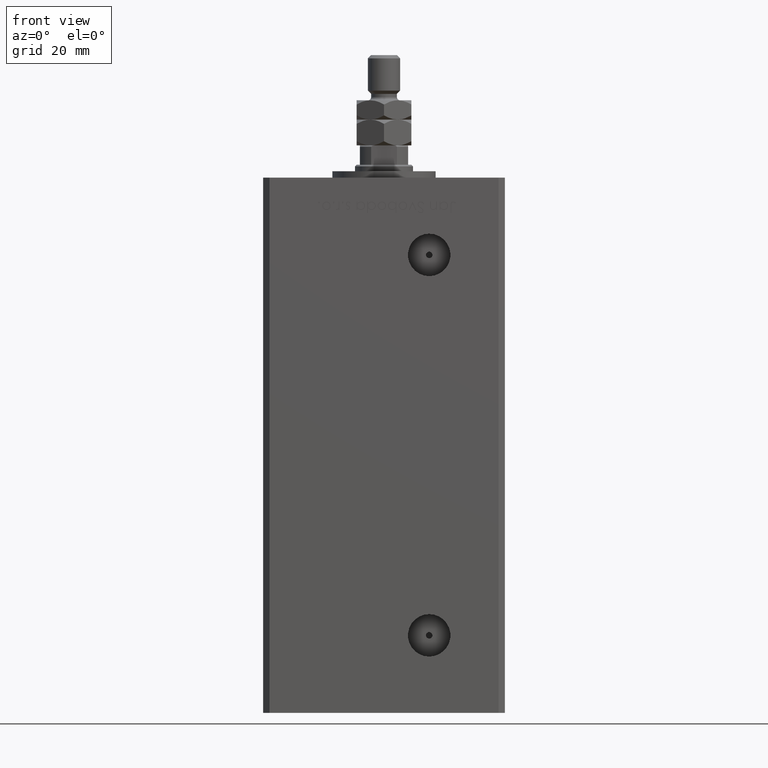
[diagram: clean part render]
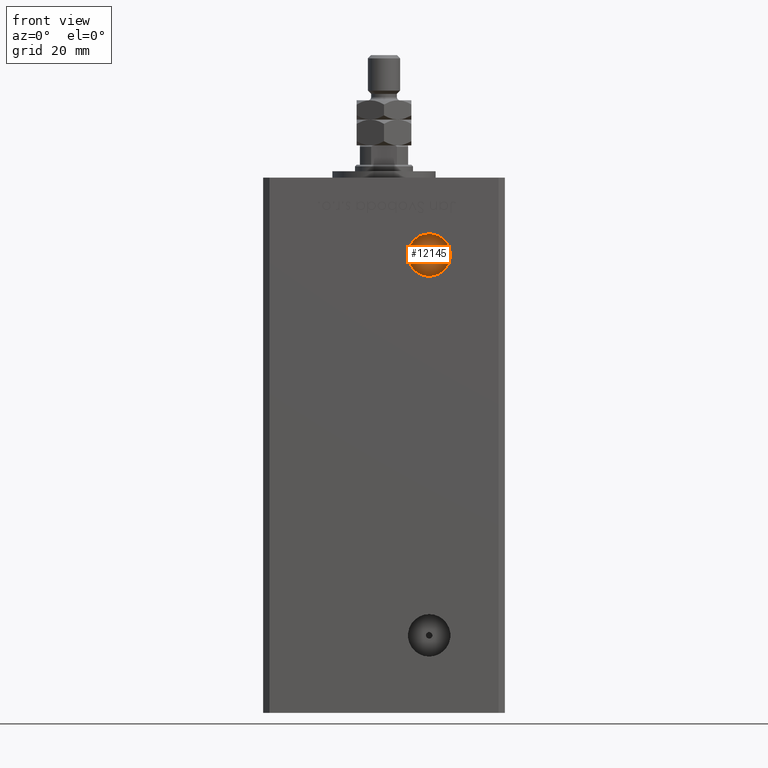
[diagram: same view with one face highlighted and labeled with its STEP entity id]
A machine part, front view. The second image highlights one B-rep face of the part: STEP entity #12145.
In plain terms, the highlighted planar face has unit normal (0, -1, 0).
Its self-contained STEP definition (entity closure, byte-faithful):
#1135 = EDGE_CURVE ( 'NONE', #6635, #4102, #32059, .T. ) ;
#4102 = VERTEX_POINT ( 'NONE', #25929 ) ;
#6329 = FACE_BOUND ( 'NONE', #27899, .T. ) ;
#6594 = DIRECTION ( 'NONE',  ( 0.000000000000000000, -1.000000000000000000, 0.000000000000000000 ) ) ;
#6635 = VERTEX_POINT ( 'NONE', #8627 ) ;
#7078 = CARTESIAN_POINT ( 'NONE',  ( 13.99999999999999112, -19.50000000000000355, 127.0000000000000000 ) ) ;
#8259 = DIRECTION ( 'NONE',  ( 0.000000000000000000, -1.000000000000000000, 0.000000000000000000 ) ) ;
#8627 = CARTESIAN_POINT ( 'NONE',  ( 13.99999999999999112, -19.50000000000000355, 128.0000000000000000 ) ) ;
#9641 = ORIENTED_EDGE ( 'NONE', *, *, #25504, .F. ) ;
#11493 = CARTESIAN_POINT ( 'NONE',  ( 13.99999999999999112, -19.50000000000000355, 127.0000000000000000 ) ) ;
#12145 = ADVANCED_FACE ( 'NONE', ( #6329, #43843 ), #22647, .T. ) ;
#14901 = CARTESIAN_POINT ( 'NONE',  ( 13.99999999999999112, -19.50000000000000355, 133.5800000000000125 ) ) ;
#18813 = CARTESIAN_POINT ( 'NONE',  ( 0.000000000000000000, -19.50000000000000355, 0.000000000000000000 ) ) ;
#19023 = DIRECTION ( 'NONE',  ( -0.000000000000000000, 1.000000000000000000, -0.000000000000000000 ) ) ;
#19290 = CARTESIAN_POINT ( 'NONE',  ( 13.99999999999999112, -19.50000000000000355, 120.4200000000000017 ) ) ;
#20221 = DIRECTION ( 'NONE',  ( 0.000000000000000000, 0.000000000000000000, -1.000000000000000000 ) ) ;
#22647 = PLANE ( 'NONE',  #36548 ) ;
#23728 = DIRECTION ( 'NONE',  ( 0.000000000000000000, 0.000000000000000000, -1.000000000000000000 ) ) ;
#25504 = EDGE_CURVE ( 'NONE', #28362, #34096, #38696, .T. ) ;
#25929 = CARTESIAN_POINT ( 'NONE',  ( 13.99999999999999112, -19.50000000000000355, 126.0000000000000000 ) ) ;
#26771 = CARTESIAN_POINT ( 'NONE',  ( 13.99999999999999112, -19.50000000000000355, 127.0000000000000000 ) ) ;
#27899 = EDGE_LOOP ( 'NONE', ( #38473, #33755 ) ) ;
#28362 = VERTEX_POINT ( 'NONE', #14901 ) ;
#31932 = AXIS2_PLACEMENT_3D ( 'NONE', #7078, #19023, #35623 ) ;
#32059 = CIRCLE ( 'NONE', #52917, 1.000000000000000888 ) ;
#33755 = ORIENTED_EDGE ( 'NONE', *, *, #1135, .F. ) ;
#34096 = VERTEX_POINT ( 'NONE', #19290 ) ;
#34878 = DIRECTION ( 'NONE',  ( 0.000000000000000000, -0.000000000000000000, -1.000000000000000000 ) ) ;
#35324 = CIRCLE ( 'NONE', #40566, 1.000000000000000888 ) ;
#35623 = DIRECTION ( 'NONE',  ( 0.000000000000000000, 0.000000000000000000, -1.000000000000000000 ) ) ;
#36284 = CIRCLE ( 'NONE', #31932, 6.580000000000002736 ) ;
#36548 = AXIS2_PLACEMENT_3D ( 'NONE', #18813, #6594, #34878 ) ;
#36977 = CARTESIAN_POINT ( 'NONE',  ( 13.99999999999999112, -19.50000000000000355, 127.0000000000000000 ) ) ;
#38473 = ORIENTED_EDGE ( 'NONE', *, *, #44908, .F. ) ;
#38696 = CIRCLE ( 'NONE', #52586, 6.580000000000002736 ) ;
#39168 = ORIENTED_EDGE ( 'NONE', *, *, #44281, .F. ) ;
#40533 = DIRECTION ( 'NONE',  ( 0.000000000000000000, 0.000000000000000000, -1.000000000000000000 ) ) ;
#40566 = AXIS2_PLACEMENT_3D ( 'NONE', #11493, #48479, #23728 ) ;
#43843 = FACE_OUTER_BOUND ( 'NONE', #47202, .T. ) ;
#44281 = EDGE_CURVE ( 'NONE', #34096, #28362, #36284, .T. ) ;
#44908 = EDGE_CURVE ( 'NONE', #4102, #6635, #35324, .T. ) ;
#47202 = EDGE_LOOP ( 'NONE', ( #39168, #9641 ) ) ;
#48479 = DIRECTION ( 'NONE',  ( 0.000000000000000000, -1.000000000000000000, 0.000000000000000000 ) ) ;
#52586 = AXIS2_PLACEMENT_3D ( 'NONE', #36977, #53561, #40533 ) ;
#52917 = AXIS2_PLACEMENT_3D ( 'NONE', #26771, #8259, #20221 ) ;
#53561 = DIRECTION ( 'NONE',  ( -0.000000000000000000, 1.000000000000000000, -0.000000000000000000 ) ) ;